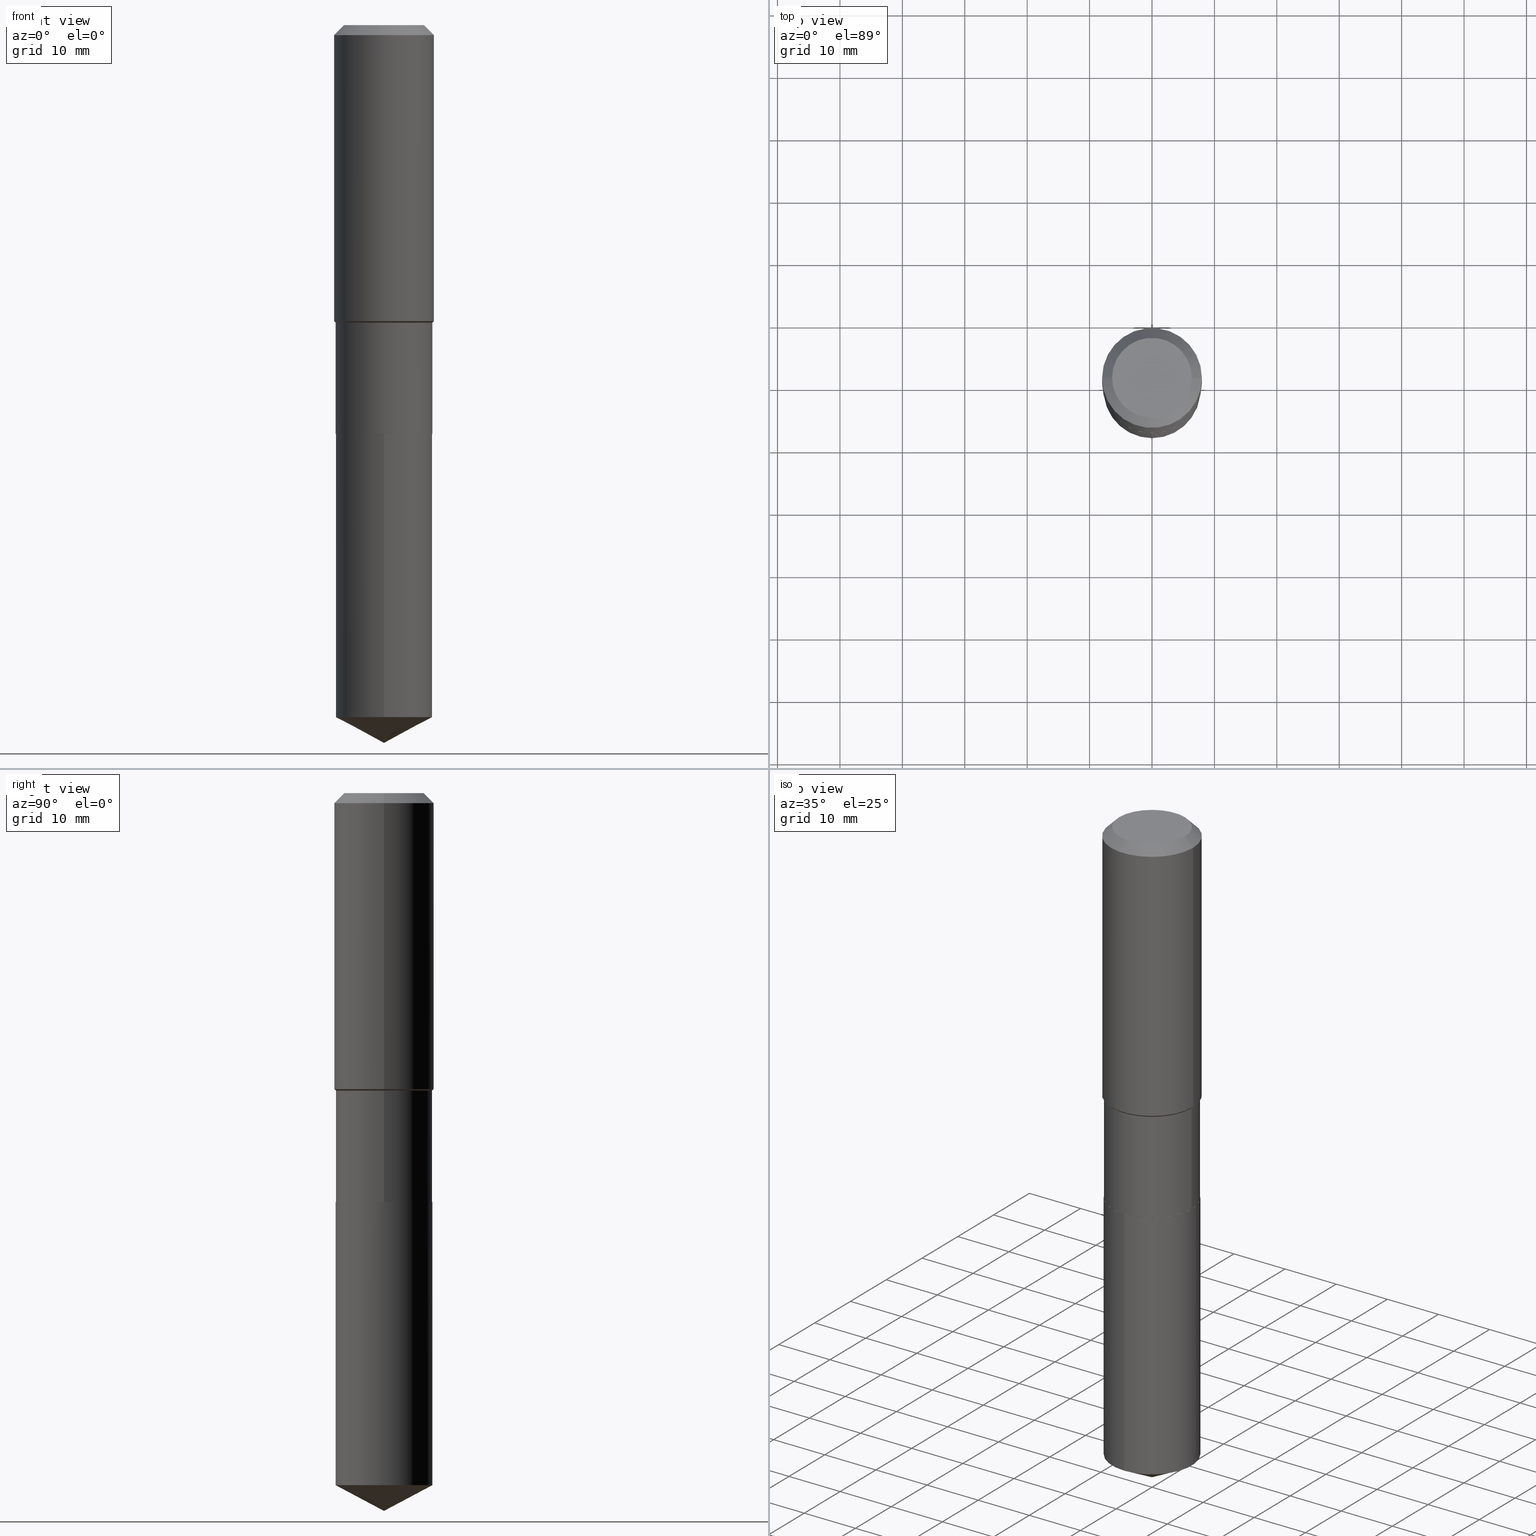
[diagram: canonical four-view strip — front | top / right | iso, engineering-drawing reading convention]
A machine part, canonical four-view strip (front | top / right | iso — engineering-drawing reading convention). The complete STEP part file that produces these views, byte-faithful:
ISO-10303-21;
HEADER;
FILE_DESCRIPTION (( 'STEP AP203' ),
    '1' );
FILE_NAME ('64700.STEP',
    '2024-04-24T18:51:53',
    ( '' ),
    ( '' ),
    'SwSTEP 2.0',
    'SolidWorks 2023',
    '' );
FILE_SCHEMA (( 'CONFIG_CONTROL_DESIGN' ));
ENDSEC;

DATA;
#1 = ADVANCED_FACE ( 'NONE', ( #322 ), #136, .T. ) ;
#2 = VERTEX_POINT ( 'NONE', #220 ) ;
#3 = DIRECTION ( 'NONE',  ( 1.000000000000000000, 0.000000000000000000, 0.000000000000000000 ) ) ;
#4 = VECTOR ( 'NONE', #252, 39.37007874015748143 ) ;
#5 = ORIENTED_EDGE ( 'NONE', *, *, #484, .T. ) ;
#6 = DIRECTION ( 'NONE',  ( -2.445468806185136597E-29, 3.491481338843145583E-15, 1.000000000000000000 ) ) ;
#7 = EDGE_CURVE ( 'NONE', #82, #47, #271, .T. ) ;
#8 = EDGE_LOOP ( 'NONE', ( #294, #188, #329, #417 ) ) ;
#9 = DATE_AND_TIME ( #352, #463 ) ;
#10 = EDGE_CURVE ( 'NONE', #485, #196, #161, .T. ) ;
#11 = EDGE_LOOP ( 'NONE', ( #230, #259, #148, #438 ) ) ;
#12 = ORIENTED_EDGE ( 'NONE', *, *, #330, .F. ) ;
#13 = AXIS2_PLACEMENT_3D ( 'NONE', #422, #457, #303 ) ;
#14 = CONICAL_SURFACE ( 'NONE', #202, 0.3045999999999999819, 0.7853981633972434429 ) ;
#15 = SECURITY_CLASSIFICATION ( '', '', #389 ) ;
#16 = DIRECTION ( 'NONE',  ( -6.982962677686265133E-15, -1.000000000000000000, 3.581577179500836259E-15 ) ) ;
#17 = EDGE_CURVE ( 'NONE', #82, #35, #71, .T. ) ;
#18 = CYLINDRICAL_SURFACE ( 'NONE', #340, 0.3050999999999999268 ) ;
#19 = COORDINATED_UNIVERSAL_TIME_OFFSET ( 5, 0, .BEHIND. ) ;
#20 = VECTOR ( 'NONE', #488, 39.37007874015748143 ) ;
#21 = CIRCLE ( 'NONE', #221, 0.3050999999999999268 ) ;
#22 = DIRECTION ( 'NONE',  ( 1.000000000000000000, -6.982962677686265922E-15, 4.876176775795935232E-29 ) ) ;
#23 = ADVANCED_FACE ( 'NONE', ( #108 ), #299, .T. ) ;
#24 = DATE_TIME_ROLE ( 'classification_date' ) ;
#25 = CARTESIAN_POINT ( 'NONE',  ( 6.304907676106516855E-29, -9.001737187805394412E-15, -2.578199999999999381 ) ) ;
#26 = PRODUCT ( '64700', '64700', '', ( #324 ) ) ;
#27 = CARTESIAN_POINT ( 'NONE',  ( 1.540400801016026329E-30, -2.199284095337310135E-16, -0.06299000000000036514 ) ) ;
#28 = PERSON_AND_ORGANIZATION_ROLE ( 'design_supplier' ) ;
#29 = DIRECTION ( 'NONE',  ( -2.445506732258076167E-29, 3.491427026548078153E-15, 1.000000000000000000 ) ) ;
#30 = CARTESIAN_POINT ( 'NONE',  ( -0.3050999999999999268, 2.167865886804065147E-15, -1.500767096036771338E-29 ) ) ;
#31 = ORIENTED_EDGE ( 'NONE', *, *, #129, .T. ) ;
#32 = EDGE_CURVE ( 'NONE', #106, #141, #478, .T. ) ;
#33 = FACE_OUTER_BOUND ( 'NONE', #407, .T. ) ;
#34 =( GEOMETRIC_REPRESENTATION_CONTEXT ( 3 ) GLOBAL_UNCERTAINTY_ASSIGNED_CONTEXT ( ( #401 ) ) GLOBAL_UNIT_ASSIGNED_CONTEXT ( ( #370, #45, #191 ) ) REPRESENTATION_CONTEXT ( 'NONE', 'WORKASPACE' ) );
#35 = VERTEX_POINT ( 'NONE', #244 ) ;
#36 = CARTESIAN_POINT ( 'NONE',  ( 6.304907676106516855E-29, -9.001737187805394412E-15, -2.578199999999999381 ) ) ;
#37 = DIRECTION ( 'NONE',  ( -6.982962677686266711E-15, -1.000000000000000000, 3.541896320645564813E-15 ) ) ;
#38 = EDGE_LOOP ( 'NONE', ( #185, #435, #338, #152 ) ) ;
#39 = DIRECTION ( 'NONE',  ( -2.445506732258076167E-29, 3.491427026548078153E-15, 1.000000000000000000 ) ) ;
#40 = DIRECTION ( 'NONE',  ( -1.000000000000000000, 6.982962677686266711E-15, 0.000000000000000000 ) ) ;
#41 = APPROVAL_ROLE ( '' ) ;
#42 = AXIS2_PLACEMENT_3D ( 'NONE', #260, #39, #288 ) ;
#43 = ADVANCED_FACE ( 'NONE', ( #394 ), #216, .F. ) ;
#44 = ORIENTED_EDGE ( 'NONE', *, *, #63, .F. ) ;
#45 =( NAMED_UNIT ( * ) PLANE_ANGLE_UNIT ( ) SI_UNIT ( $, .RADIAN. ) );
#46 = DIRECTION ( 'NONE',  ( -2.445506732258076167E-29, 3.491427026548078153E-15, 1.000000000000000000 ) ) ;
#47 = VERTEX_POINT ( 'NONE', #212 ) ;
#48 = ADVANCED_FACE ( 'NONE', ( #280 ), #103, .F. ) ;
#49 = ORIENTED_EDGE ( 'NONE', *, *, #424, .F. ) ;
#50 = MANIFOLD_SOLID_BREP ( 'Body-Move/Copy2[1]', #291 ) ;
#51 = ORIENTED_EDGE ( 'NONE', *, *, #420, .F. ) ;
#52 = LINE ( 'NONE', #268, #487 ) ;
#53 = AXIS2_PLACEMENT_3D ( 'NONE', #208, #477, #138 ) ;
#54 = APPROVAL_PERSON_ORGANIZATION ( #114, #466, #41 ) ;
#55 = ADVANCED_FACE ( 'NONE', ( #360 ), #228, .T. ) ;
#56 = PERSON_AND_ORGANIZATION ( #134, #410 ) ;
#57 = AXIS2_PLACEMENT_3D ( 'NONE', #168, #305, #468 ) ;
#58 = AXIS2_PLACEMENT_3D ( 'NONE', #250, #402, #73 ) ;
#59 = CARTESIAN_POINT ( 'NONE',  ( -2.130501912962016366E-15, -0.3051000000000089751, -2.578699999999998216 ) ) ;
#60 = CARTESIAN_POINT ( 'NONE',  ( 6.306130410509609656E-29, -9.003482928474816704E-15, -2.578699999999999548 ) ) ;
#61 = DIRECTION ( 'NONE',  ( -2.445468806185136597E-29, 3.491481338843145583E-15, 1.000000000000000000 ) ) ;
#62 = CARTESIAN_POINT ( 'NONE',  ( -8.520761412757830605E-28, 1.216498318901973743E-13, 34.84247874015748181 ) ) ;
#63 = EDGE_CURVE ( 'NONE', #2, #35, #441, .T. ) ;
#64 = VERTEX_POINT ( 'NONE', #147 ) ;
#65 = DIRECTION ( 'NONE',  ( 1.000000000000000000, -6.982962677686269866E-15, 0.000000000000000000 ) ) ;
#66 = DIRECTION ( 'NONE',  ( 1.000000000000000000, -6.982962677686269866E-15, 0.000000000000000000 ) ) ;
#67 = ORIENTED_EDGE ( 'NONE', *, *, #330, .T. ) ;
#68 = CC_DESIGN_PERSON_AND_ORGANIZATION_ASSIGNMENT ( #308, #97, ( #98 ) ) ;
#69 = CYLINDRICAL_SURFACE ( 'NONE', #368, 0.3149500000000001743 ) ;
#70 = AXIS2_PLACEMENT_3D ( 'NONE', #25, #480, #140 ) ;
#71 = LINE ( 'NONE', #209, #227 ) ;
#72 = ORIENTED_EDGE ( 'NONE', *, *, #32, .T. ) ;
#73 = DIRECTION ( 'NONE',  ( 1.000000000000000000, -6.982962677686266711E-15, 0.000000000000000000 ) ) ;
#74 = DIRECTION ( 'NONE',  ( -2.445506732258076167E-29, 3.491427026548078153E-15, 1.000000000000000000 ) ) ;
#75 = DIRECTION ( 'NONE',  ( -2.445506732258076167E-29, 3.491427026548078153E-15, 1.000000000000000000 ) ) ;
#76 = EDGE_CURVE ( 'NONE', #289, #298, #428, .T. ) ;
#77 = ORIENTED_EDGE ( 'NONE', *, *, #132, .F. ) ;
#78 =( LENGTH_UNIT ( ) NAMED_UNIT ( * ) SI_UNIT ( $, .METRE. ) );
#79 = AXIS2_PLACEMENT_3D ( 'NONE', #60, #205, #351 ) ;
#80 = AXIS2_PLACEMENT_3D ( 'NONE', #359, #439, #393 ) ;
#81 = ADVANCED_FACE ( 'NONE', ( #392 ), #346, .T. ) ;
#82 = VERTEX_POINT ( 'NONE', #201 ) ;
#83 = DIRECTION ( 'NONE',  ( -6.982962677686265133E-15, -1.000000000000000000, 3.581577179500837048E-15 ) ) ;
#84 = ORIENTED_EDGE ( 'NONE', *, *, #17, .F. ) ;
#85 = ORIENTED_EDGE ( 'NONE', *, *, #113, .T. ) ;
#86 = EDGE_CURVE ( 'NONE', #289, #64, #52, .T. ) ;
#87 = LENGTH_MEASURE_WITH_UNIT ( LENGTH_MEASURE( 0.02539999999999999897 ), #78 );
#88 = CONICAL_SURFACE ( 'NONE', #80, 0.3050999999999999268, 0.7853981633974552734 ) ;
#89 = ORIENTED_EDGE ( 'NONE', *, *, #270, .F. ) ;
#90 = CARTESIAN_POINT ( 'NONE',  ( -0.3050999999999999268, -5.609757943602924419E-15, -1.876999999999999780 ) ) ;
#91 = APPROVAL_ROLE ( '' ) ;
#92 = LINE ( 'NONE', #166, #163 ) ;
#93 = EDGE_CURVE ( 'NONE', #47, #82, #118, .T. ) ;
#94 = DIRECTION ( 'NONE',  ( -2.445468806185136597E-29, 3.491481338843145583E-15, 1.000000000000000000 ) ) ;
#95 = CC_DESIGN_APPROVAL ( #276, ( #119 ) ) ;
#96 = DIRECTION ( 'NONE',  ( 0.7071067811865524577, -2.468850131082308731E-15, 0.7071067811865425767 ) ) ;
#97 = PERSON_AND_ORGANIZATION_ROLE ( 'creator' ) ;
#98 = PRODUCT_DEFINITION ( 'UNKNOWN', '', #119, #447 ) ;
#99 = CARTESIAN_POINT ( 'NONE',  ( -0.3149500000000000077, -1.131669549400917718E-15, -0.06299000000000036514 ) ) ;
#100 = CARTESIAN_POINT ( 'NONE',  ( 1.107227799615215096E-28, -1.580778500539907344E-14, -4.527599999999999625 ) ) ;
#101 = AXIS2_PLACEMENT_3D ( 'NONE', #36, #399, #172 ) ;
#102 = LINE ( 'NONE', #434, #266 ) ;
#103 = PLANE ( 'NONE',  #169 ) ;
#104 = CARTESIAN_POINT ( 'NONE',  ( 1.067545725771425880E-28, -1.524152989065448378E-14, -4.365375452400082956 ) ) ;
#105 = ADVANCED_FACE ( 'NONE', ( #162 ), #18, .T. ) ;
#106 = VERTEX_POINT ( 'NONE', #300 ) ;
#107 = CARTESIAN_POINT ( 'NONE',  ( 2.167865886804172038E-15, 0.3050999999999847723, -4.365375452400083844 ) ) ;
#108 = FACE_OUTER_BOUND ( 'NONE', #398, .T. ) ;
#109 = AXIS2_PLACEMENT_3D ( 'NONE', #27, #354, #40 ) ;
#110 = PLANE ( 'NONE',  #53 ) ;
#111 = AXIS2_PLACEMENT_3D ( 'NONE', #204, #246, #284 ) ;
#112 = CARTESIAN_POINT ( 'NONE',  ( -9.427742298522569579E-47, 1.346031739168368629E-32, 3.855188123715871501E-18 ) ) ;
#113 = EDGE_CURVE ( 'NONE', #371, #2, #464, .T. ) ;
#114 = PERSON_AND_ORGANIZATION ( #134, #410 ) ;
#115 = CARTESIAN_POINT ( 'NONE',  ( 2.167865886804128256E-15, 0.3050999999999909895, -2.578700000000000436 ) ) ;
#116 = PRODUCT_RELATED_PRODUCT_CATEGORY ( 'detail', '', ( #26 ) ) ;
#117 = ORIENTED_EDGE ( 'NONE', *, *, #476, .T. ) ;
#118 = CIRCLE ( 'NONE', #57, 0.2519600000000000173 ) ;
#119 = PRODUCT_DEFINITION_FORMATION_WITH_SPECIFIED_SOURCE ( 'ANY', '', #26, .NOT_KNOWN. ) ;
#120 = EDGE_LOOP ( 'NONE', ( #245, #248 ) ) ;
#121 = ORIENTED_EDGE ( 'NONE', *, *, #10, .F. ) ;
#122 = LINE ( 'NONE', #115, #258 ) ;
#123 = ORIENTED_EDGE ( 'NONE', *, *, #344, .F. ) ;
#124 = DATE_AND_TIME ( #462, #229 ) ;
#125 = DIRECTION ( 'NONE',  ( -2.445468806185136877E-29, 3.491481338843145188E-15, 1.000000000000000000 ) ) ;
#126 = AXIS2_PLACEMENT_3D ( 'NONE', #387, #342, #16 ) ;
#127 = ORIENTED_EDGE ( 'NONE', *, *, #461, .F. ) ;
#128 = LINE ( 'NONE', #159, #459 ) ;
#129 = EDGE_CURVE ( 'NONE', #64, #298, #137, .T. ) ;
#130 = CIRCLE ( 'NONE', #357, 0.3050999999999999823 ) ;
#131 = DIRECTION ( 'NONE',  ( 1.000000000000000000, -6.982962677686265133E-15, 4.876176775795935793E-29 ) ) ;
#132 = EDGE_CURVE ( 'NONE', #141, #328, #128, .T. ) ;
#133 = DIRECTION ( 'NONE',  ( -2.445468806185136597E-29, 3.491481338843145583E-15, 1.000000000000000000 ) ) ;
#134 = PERSON ( 'UNSPECIFIED', 'UNSPECIFIED', 'UNSPECIFIED', ('UNSPECIFIED'), ('UNSPECIFIED'), ('UNSPECIFIED') ) ;
#135 = CARTESIAN_POINT ( 'NONE',  ( 6.306130410509609656E-29, -9.003482928474816704E-15, -2.578699999999999548 ) ) ;
#136 = CYLINDRICAL_SURFACE ( 'NONE', #416, 0.3050999999999999268 ) ;
#137 = CIRCLE ( 'NONE', #126, 0.3051000000000000378 ) ;
#138 = DIRECTION ( 'NONE',  ( 6.982962677686265922E-15, 1.000000000000000000, -3.491427026548078153E-15 ) ) ;
#139 = ADVANCED_FACE ( 'NONE', ( #296 ), #423, .T. ) ;
#140 = DIRECTION ( 'NONE',  ( 1.000000000000000000, -6.982962677686264344E-15, 0.000000000000000000 ) ) ;
#141 = VERTEX_POINT ( 'NONE', #90 ) ;
#142 = DIRECTION ( 'NONE',  ( 1.000000000000000000, -6.982962677686266711E-15, 0.000000000000000000 ) ) ;
#143 = DIRECTION ( 'NONE',  ( 1.000000000000000000, -6.982962677686266711E-15, 4.876115136096691995E-29 ) ) ;
#144 = ORIENTED_EDGE ( 'NONE', *, *, #86, .T. ) ;
#145 = DIMENSIONAL_EXPONENTS ( 1.000000000000000000, 0.000000000000000000, 0.000000000000000000, 0.000000000000000000, 0.000000000000000000, 0.000000000000000000, 0.000000000000000000 ) ;
#146 = PERSON_AND_ORGANIZATION_ROLE ( 'design_owner' ) ;
#147 = CARTESIAN_POINT ( 'NONE',  ( -2.130501912961973373E-15, -0.3051000000000153034, -4.365375452400082068 ) ) ;
#148 = ORIENTED_EDGE ( 'NONE', *, *, #326, .T. ) ;
#149 = CARTESIAN_POINT ( 'NONE',  ( -0.3045999999999999819, -6.839169755349552456E-15, -2.578699999999999548 ) ) ;
#150 = ORIENTED_EDGE ( 'NONE', *, *, #93, .F. ) ;
#151 = LINE ( 'NONE', #149, #4 ) ;
#152 = ORIENTED_EDGE ( 'NONE', *, *, #380, .F. ) ;
#153 = CARTESIAN_POINT ( 'NONE',  ( 0.3050999999999999268, -2.130501912962079080E-15, 1.487721534295339594E-29 ) ) ;
#154 = AXIS2_PLACEMENT_3D ( 'NONE', #282, #274, #317 ) ;
#155 = ORIENTED_EDGE ( 'NONE', *, *, #86, .F. ) ;
#156 = LINE ( 'NONE', #153, #400 ) ;
#157 = ORIENTED_EDGE ( 'NONE', *, *, #307, .T. ) ;
#158 = ADVANCED_BREP_SHAPE_REPRESENTATION ( '64700', ( #50, #365, #460 ), #34 ) ;
#159 = CARTESIAN_POINT ( 'NONE',  ( -0.3050999999999999268, -4.385644586204518785E-15, -1.876999999999999780 ) ) ;
#160 = EDGE_LOOP ( 'NONE', ( #213, #144, #409 ) ) ;
#161 = CIRCLE ( 'NONE', #297, 0.3045999999999999819 ) ;
#162 = FACE_OUTER_BOUND ( 'NONE', #261, .T. ) ;
#163 = VECTOR ( 'NONE', #125, 39.37007874015748143 ) ;
#164 = AXIS2_PLACEMENT_3D ( 'NONE', #469, #133, #350 ) ;
#165 = ORIENTED_EDGE ( 'NONE', *, *, #420, .T. ) ;
#166 = CARTESIAN_POINT ( 'NONE',  ( -0.3149500000000001743, 2.237854346276436774E-15, -1.549218606675783237E-29 ) ) ;
#167 = DIRECTION ( 'NONE',  ( -0.7071067811865524577, 7.493145998870371515E-15, 0.7071067811865425767 ) ) ;
#168 = CARTESIAN_POINT ( 'NONE',  ( -9.427742298522569579E-47, 1.346031739168368629E-32, 3.855188123715871501E-18 ) ) ;
#169 = AXIS2_PLACEMENT_3D ( 'NONE', #183, #186, #356 ) ;
#170 = CONICAL_SURFACE ( 'NONE', #164, 0.3050999999999999268, 0.7853981633974552734 ) ;
#171 = CALENDAR_DATE ( 2024, 24, 4 ) ;
#172 = DIRECTION ( 'NONE',  ( 1.000000000000000000, -6.982962677686264344E-15, 0.000000000000000000 ) ) ;
#173 = PERSON_AND_ORGANIZATION ( #134, #410 ) ;
#174 = CARTESIAN_POINT ( 'NONE',  ( 2.167865886804172432E-15, 0.3050999999999909895, -2.578700000000000436 ) ) ;
#175 = APPROVAL_DATE_TIME ( #9, #197 ) ;
#176 = DIRECTION ( 'NONE',  ( -2.445506732258076167E-29, 3.491427026548078153E-15, 1.000000000000000000 ) ) ;
#177 = CARTESIAN_POINT ( 'NONE',  ( -4.713871149261284790E-47, 6.730158695841843144E-33, 1.927594061857935750E-18 ) ) ;
#178 = ORIENTED_EDGE ( 'NONE', *, *, #184, .T. ) ;
#179 = CIRCLE ( 'NONE', #58, 0.3050999999999999268 ) ;
#180 = DIRECTION ( 'NONE',  ( -2.445468806185136597E-29, 3.491481338843145583E-15, 1.000000000000000000 ) ) ;
#181 = ORIENTED_EDGE ( 'NONE', *, *, #7, .F. ) ;
#182 = FACE_OUTER_BOUND ( 'NONE', #414, .T. ) ;
#183 = CARTESIAN_POINT ( 'NONE',  ( 6.306130410509609656E-29, -9.003482928474816704E-15, -2.578699999999999548 ) ) ;
#184 = EDGE_CURVE ( 'NONE', #328, #336, #92, .T. ) ;
#185 = ORIENTED_EDGE ( 'NONE', *, *, #431, .F. ) ;
#186 = DIRECTION ( 'NONE',  ( -2.438088387897960049E-29, 3.491481338843145188E-15, 1.000000000000000000 ) ) ;
#187 = CC_DESIGN_PERSON_AND_ORGANIZATION_ASSIGNMENT ( #486, #146, ( #26 ) ) ;
#188 = ORIENTED_EDGE ( 'NONE', *, *, #431, .T. ) ;
#189 = VECTOR ( 'NONE', #408, 39.37007874015748143 ) ;
#190 = EDGE_LOOP ( 'NONE', ( #255, #363, #283, #12 ) ) ;
#191 =( NAMED_UNIT ( * ) SI_UNIT ( $, .STERADIAN. ) SOLID_ANGLE_UNIT ( ) );
#192 = DIRECTION ( 'NONE',  ( 1.000000000000000000, -6.982962677686266711E-15, 0.000000000000000000 ) ) ;
#193 = ORIENTED_EDGE ( 'NONE', *, *, #262, .T. ) ;
#194 = APPROVAL_DATE_TIME ( #456, #276 ) ;
#195 = ADVANCED_FACE ( 'NONE', ( #269 ), #465, .T. ) ;
#196 = VERTEX_POINT ( 'NONE', #382 ) ;
#197 = APPROVAL ( #429, 'UNSPECIFIED' ) ;
#198 = PERSON_AND_ORGANIZATION ( #134, #410 ) ;
#199 = DIRECTION ( 'NONE',  ( -2.445468806185136597E-29, 3.491481338843145583E-15, 1.000000000000000000 ) ) ;
#200 = CIRCLE ( 'NONE', #432, 0.3045999999999999819 ) ;
#201 = CARTESIAN_POINT ( 'NONE',  ( 0.2519600000000000173, -2.054606664725195058E-15, 3.855188123729206640E-18 ) ) ;
#202 = AXIS2_PLACEMENT_3D ( 'NONE', #218, #430, #65 ) ;
#203 = DATE_AND_TIME ( #171, #278 ) ;
#204 = CARTESIAN_POINT ( 'NONE',  ( 1.540400801016026329E-30, -2.199284095337310135E-16, -0.06299000000000036514 ) ) ;
#205 = DIRECTION ( 'NONE',  ( -2.445468806185136597E-29, 3.491481338843145583E-15, 1.000000000000000000 ) ) ;
#206 = EDGE_CURVE ( 'NONE', #328, #2, #384, .T. ) ;
#207 = COORDINATED_UNIVERSAL_TIME_OFFSET ( 5, 0, .BEHIND. ) ;
#208 = CARTESIAN_POINT ( 'NONE',  ( 6.306130410509609656E-29, -9.003482928474816704E-15, -2.578699999999999548 ) ) ;
#209 = CARTESIAN_POINT ( 'NONE',  ( 0.3149500000000000077, -2.380642253931875190E-15, -0.06299000000000036514 ) ) ;
#210 = EDGE_LOOP ( 'NONE', ( #165, #157 ) ) ;
#211 = FACE_OUTER_BOUND ( 'NONE', #451, .T. ) ;
#212 = CARTESIAN_POINT ( 'NONE',  ( -0.2519600000000000173, 1.869391481036695286E-15, 3.855188123703182704E-18 ) ) ;
#213 = ORIENTED_EDGE ( 'NONE', *, *, #76, .F. ) ;
#214 = CIRCLE ( 'NONE', #240, 0.3149500000000000077 ) ;
#215 = DIRECTION ( 'NONE',  ( -6.982962677686265133E-15, -1.000000000000000000, 3.581577179500837048E-15 ) ) ;
#216 = PLANE ( 'NONE',  #375 ) ;
#217 = ORIENTED_EDGE ( 'NONE', *, *, #461, .T. ) ;
#218 = CARTESIAN_POINT ( 'NONE',  ( 6.306130410509609656E-29, -9.003482928474816704E-15, -2.578699999999999548 ) ) ;
#219 = ADVANCED_FACE ( 'NONE', ( #182 ), #331, .T. ) ;
#220 = CARTESIAN_POINT ( 'NONE',  ( 0.3149500000000002298, -8.718403477158269000E-15, -1.867149999999999421 ) ) ;
#221 = AXIS2_PLACEMENT_3D ( 'NONE', #446, #490, #286 ) ;
#222 = ADVANCED_FACE ( 'NONE', ( #33 ), #234, .T. ) ;
#223 = ORIENTED_EDGE ( 'NONE', *, *, #113, .F. ) ;
#224 = DIRECTION ( 'NONE',  ( -2.445468806185136597E-29, 3.491481338843145583E-15, 1.000000000000000000 ) ) ;
#225 = CARTESIAN_POINT ( 'NONE',  ( -0.3149500000000000077, 1.979355685803558833E-15, -0.06299000000000036514 ) ) ;
#226 = ORIENTED_EDGE ( 'NONE', *, *, #476, .F. ) ;
#227 = VECTOR ( 'NONE', #285, 39.37007874015748143 ) ;
#228 = CONICAL_SURFACE ( 'NONE', #440, 74.04434902938345431, 1.082104136236486047 ) ;
#229 = LOCAL_TIME ( 14, 51, 53.00000000000000000, #312 ) ;
#230 = ORIENTED_EDGE ( 'NONE', *, *, #471, .F. ) ;
#231 = DIRECTION ( 'NONE',  ( -2.445468806185136597E-29, 3.491481338843145583E-15, 1.000000000000000000 ) ) ;
#232 = VERTEX_POINT ( 'NONE', #59 ) ;
#233 = CARTESIAN_POINT ( 'NONE',  ( 0.000000000000000000, 0.000000000000000000, 0.000000000000000000 ) ) ;
#234 = CONICAL_SURFACE ( 'NONE', #154, 74.04434902938345431, 1.082104136236486047 ) ;
#235 = CC_DESIGN_PERSON_AND_ORGANIZATION_ASSIGNMENT ( #56, #265, ( #15 ) ) ;
#236 = PRODUCT_DEFINITION_SHAPE ( 'NONE', 'NONE',  #98 ) ;
#237 = PERSON_AND_ORGANIZATION_ROLE ( 'creator' ) ;
#238 = FACE_OUTER_BOUND ( 'NONE', #38, .T. ) ;
#239 = DIRECTION ( 'NONE',  ( 6.273719981627762921E-15, 0.8829475928589293199, 0.4694715627858860874 ) ) ;
#240 = AXIS2_PLACEMENT_3D ( 'NONE', #313, #321, #142 ) ;
#241 = APPROVAL_ROLE ( '' ) ;
#242 = DIRECTION ( 'NONE',  ( -6.982962677686265133E-15, -1.000000000000000000, 3.581577179500836259E-15 ) ) ;
#243 = DIRECTION ( 'NONE',  ( -2.445506732258076167E-29, 3.491427026548078153E-15, 1.000000000000000000 ) ) ;
#244 = CARTESIAN_POINT ( 'NONE',  ( 0.3149500000000000077, -2.419212504871020909E-15, -0.06299000000000036514 ) ) ;
#245 = ORIENTED_EDGE ( 'NONE', *, *, #93, .T. ) ;
#246 = DIRECTION ( 'NONE',  ( 2.445468806185136597E-29, -3.491481338843145583E-15, -1.000000000000000000 ) ) ;
#247 = DIRECTION ( 'NONE',  ( -2.445468806185136877E-29, 3.491481338843145188E-15, 1.000000000000000000 ) ) ;
#248 = ORIENTED_EDGE ( 'NONE', *, *, #7, .T. ) ;
#249 = AXIS2_PLACEMENT_3D ( 'NONE', #290, #224, #192 ) ;
#250 = CARTESIAN_POINT ( 'NONE',  ( 4.590144949209500643E-29, -6.553510473008583144E-15, -1.876999999999999780 ) ) ;
#251 = DIRECTION ( 'NONE',  ( -2.445468806185136597E-29, 3.491481338843145583E-15, 1.000000000000000000 ) ) ;
#252 = DIRECTION ( 'NONE',  ( -0.7071067811864026886, 7.493145998869830357E-15, 0.7071067811866923458 ) ) ;
#253 = EDGE_LOOP ( 'NONE', ( #77, #287, #85, #361 ) ) ;
#254 = CARTESIAN_POINT ( 'NONE',  ( -0.3045999999999999819, -6.836520528175441255E-15, -2.578699999999999548 ) ) ;
#255 = ORIENTED_EDGE ( 'NONE', *, *, #184, .F. ) ;
#256 = AXIS2_PLACEMENT_3D ( 'NONE', #267, #231, #378 ) ;
#257 = DIRECTION ( 'NONE',  ( 0.000000000000000000, 0.000000000000000000, 1.000000000000000000 ) ) ;
#258 = VECTOR ( 'NONE', #75, 39.37007874015748143 ) ;
#259 = ORIENTED_EDGE ( 'NONE', *, *, #348, .T. ) ;
#260 = CARTESIAN_POINT ( 'NONE',  ( 6.306130410509609656E-29, -9.003482928474816704E-15, -2.578699999999999548 ) ) ;
#261 = EDGE_LOOP ( 'NONE', ( #445, #482, #217, #49 ) ) ;
#262 = EDGE_CURVE ( 'NONE', #377, #106, #306, .T. ) ;
#263 = DIRECTION ( 'NONE',  ( 1.000000000000000000, -6.982962677686268288E-15, 0.000000000000000000 ) ) ;
#264 = ORIENTED_EDGE ( 'NONE', *, *, #455, .T. ) ;
#265 = PERSON_AND_ORGANIZATION_ROLE ( 'classification_officer' ) ;
#266 = VECTOR ( 'NONE', #29, 39.37007874015748143 ) ;
#267 = CARTESIAN_POINT ( 'NONE',  ( 4.566057081468576714E-29, -6.519119381820977551E-15, -1.867149999999999421 ) ) ;
#268 = CARTESIAN_POINT ( 'NONE',  ( 1.107208068104308501E-28, -1.580806511562965912E-14, -4.527599999999999625 ) ) ;
#269 = FACE_OUTER_BOUND ( 'NONE', #458, .T. ) ;
#270 = EDGE_CURVE ( 'NONE', #196, #485, #200, .T. ) ;
#271 = CIRCLE ( 'NONE', #388, 0.2519600000000000173 ) ;
#272 = CARTESIAN_POINT ( 'NONE',  ( 0.000000000000000000, 0.000000000000000000, 0.000000000000000000 ) ) ;
#273 = DIRECTION ( 'NONE',  ( -6.165590087286832085E-15, -0.8829475928589261002, 0.4694715627858923601 ) ) ;
#274 = DIRECTION ( 'NONE',  ( -2.445506732258076167E-29, 3.491427026548078153E-15, 1.000000000000000000 ) ) ;
#275 = DATE_AND_TIME ( #421, #315 ) ;
#276 = APPROVAL ( #419, 'UNSPECIFIED' ) ;
#277 = CARTESIAN_POINT ( 'NONE',  ( -0.3149500000000002298, -4.281265035544540777E-15, -1.867149999999999421 ) ) ;
#278 = LOCAL_TIME ( 14, 51, 53.00000000000000000, #19 ) ;
#279 = CARTESIAN_POINT ( 'NONE',  ( 1.107227628097166441E-28, -1.580778500539907660E-14, -4.527599999999999625 ) ) ;
#280 = FACE_OUTER_BOUND ( 'NONE', #448, .T. ) ;
#281 = ADVANCED_FACE ( 'NONE', ( #436 ), #69, .T. ) ;
#282 = CARTESIAN_POINT ( 'NONE',  ( -8.520761412757830605E-28, 1.216498318901973743E-13, 34.84247874015748181 ) ) ;
#283 = ORIENTED_EDGE ( 'NONE', *, *, #63, .T. ) ;
#284 = DIRECTION ( 'NONE',  ( -1.000000000000000000, 6.982962677686266711E-15, 0.000000000000000000 ) ) ;
#285 = DIRECTION ( 'NONE',  ( 0.7071067811865453523, -7.319954787623248157E-15, -0.7071067811865496822 ) ) ;
#286 = DIRECTION ( 'NONE',  ( 1.000000000000000000, -6.982962677686266711E-15, 0.000000000000000000 ) ) ;
#287 = ORIENTED_EDGE ( 'NONE', *, *, #424, .T. ) ;
#288 = DIRECTION ( 'NONE',  ( -6.982962677686265133E-15, -1.000000000000000000, 3.581577179500837048E-15 ) ) ;
#289 = VERTEX_POINT ( 'NONE', #279 ) ;
#290 = CARTESIAN_POINT ( 'NONE',  ( 1.540400801016026329E-30, -2.199284095337310135E-16, -0.06299000000000036514 ) ) ;
#291 = CLOSED_SHELL ( 'NONE', ( #443, #222, #55, #139, #339 ) ) ;
#292 = ORIENTED_EDGE ( 'NONE', *, *, #484, .F. ) ;
#293 = LOCAL_TIME ( 14, 51, 53.00000000000000000, #295 ) ;
#294 = ORIENTED_EDGE ( 'NONE', *, *, #270, .T. ) ;
#295 = COORDINATED_UNIVERSAL_TIME_OFFSET ( 5, 0, .BEHIND. ) ;
#296 = FACE_OUTER_BOUND ( 'NONE', #11, .T. ) ;
#297 = AXIS2_PLACEMENT_3D ( 'NONE', #403, #433, #66 ) ;
#298 = VERTEX_POINT ( 'NONE', #107 ) ;
#299 = CONICAL_SURFACE ( 'NONE', #109, 0.3149500000000000077, 0.7853981633974452814 ) ;
#300 = CARTESIAN_POINT ( 'NONE',  ( -0.3050999999999999823, -5.609757943602922842E-15, -2.578199999999999381 ) ) ;
#301 = CC_DESIGN_SECURITY_CLASSIFICATION ( #15, ( #119 ) ) ;
#302 = DIRECTION ( 'NONE',  ( 1.000000000000000000, -6.982962677686265922E-15, 4.876176775795935232E-29 ) ) ;
#303 = DIRECTION ( 'NONE',  ( -6.982962677686265133E-15, -1.000000000000000000, 3.581577179500837048E-15 ) ) ;
#304 = VECTOR ( 'NONE', #247, 39.37007874015748143 ) ;
#305 = DIRECTION ( 'NONE',  ( -2.445468806185136597E-29, 3.491481338843145583E-15, 1.000000000000000000 ) ) ;
#306 = CIRCLE ( 'NONE', #101, 0.3050999999999999268 ) ;
#307 = EDGE_CURVE ( 'NONE', #395, #232, #130, .T. ) ;
#308 = PERSON_AND_ORGANIZATION ( #134, #410 ) ;
#309 = CARTESIAN_POINT ( 'NONE',  ( 0.3050999999999999268, -8.684012385970661829E-15, -1.876999999999999780 ) ) ;
#310 = COORDINATED_UNIVERSAL_TIME_OFFSET ( 5, 0, .BEHIND. ) ;
#311 = LINE ( 'NONE', #472, #450 ) ;
#312 = COORDINATED_UNIVERSAL_TIME_OFFSET ( 5, 0, .BEHIND. ) ;
#313 = CARTESIAN_POINT ( 'NONE',  ( 1.540400801016026329E-30, -2.199284095337310135E-16, -0.06299000000000036514 ) ) ;
#314 = AXIS2_PLACEMENT_3D ( 'NONE', #233, #94, #302 ) ;
#315 = LOCAL_TIME ( 14, 51, 53.00000000000000000, #310 ) ;
#316 = CC_DESIGN_APPROVAL ( #466, ( #98 ) ) ;
#317 = DIRECTION ( 'NONE',  ( -6.982962677686266711E-15, -1.000000000000000000, 3.541896320645564813E-15 ) ) ;
#318 = ADVANCED_FACE ( 'NONE', ( #427 ), #88, .T. ) ;
#319 = CARTESIAN_POINT ( 'NONE',  ( 0.000000000000000000, 0.000000000000000000, 0.000000000000000000 ) ) ;
#320 = ORIENTED_EDGE ( 'NONE', *, *, #76, .T. ) ;
#321 = DIRECTION ( 'NONE',  ( -2.445468806185136597E-29, 3.491481338843145583E-15, 1.000000000000000000 ) ) ;
#322 = FACE_OUTER_BOUND ( 'NONE', #479, .T. ) ;
#323 = ORIENTED_EDGE ( 'NONE', *, *, #132, .T. ) ;
#324 = MECHANICAL_CONTEXT ( 'NONE', #379, 'mechanical' ) ;
#325 = CARTESIAN_POINT ( 'NONE',  ( 0.3149500000000001743, -2.199284095337290660E-15, 1.535751875536930690E-29 ) ) ;
#326 = EDGE_CURVE ( 'NONE', #64, #232, #102, .T. ) ;
#327 = CARTESIAN_POINT ( 'NONE',  ( 4.566057081468576714E-29, -6.519119381820977551E-15, -1.867149999999999421 ) ) ;
#328 = VERTEX_POINT ( 'NONE', #277 ) ;
#329 = ORIENTED_EDGE ( 'NONE', *, *, #262, .F. ) ;
#330 = EDGE_CURVE ( 'NONE', #336, #35, #214, .T. ) ;
#331 = CONICAL_SURFACE ( 'NONE', #111, 0.3149500000000000077, 0.7853981633974452814 ) ;
#332 = FACE_OUTER_BOUND ( 'NONE', #473, .T. ) ;
#333 = CC_DESIGN_APPROVAL ( #197, ( #15 ) ) ;
#334 = CC_DESIGN_PERSON_AND_ORGANIZATION_ASSIGNMENT ( #345, #28, ( #119 ) ) ;
#335 = ORIENTED_EDGE ( 'NONE', *, *, #17, .T. ) ;
#336 = VERTEX_POINT ( 'NONE', #99 ) ;
#337 = CLOSED_SHELL ( 'NONE', ( #81, #23, #195, #372, #1, #105, #318, #281, #219, #43, #48, #369 ) ) ;
#338 = ORIENTED_EDGE ( 'NONE', *, *, #412, .T. ) ;
#339 = ADVANCED_FACE ( 'NONE', ( #483 ), #110, .F. ) ;
#340 = AXIS2_PLACEMENT_3D ( 'NONE', #272, #199, #131 ) ;
#341 = CIRCLE ( 'NONE', #249, 0.3149500000000000077 ) ;
#342 = DIRECTION ( 'NONE',  ( -2.445506732258076167E-29, 3.491427026548078153E-15, 1.000000000000000000 ) ) ;
#343 = APPROVAL_PERSON_ORGANIZATION ( #173, #197, #241 ) ;
#344 = EDGE_CURVE ( 'NONE', #371, #141, #179, .T. ) ;
#345 = PERSON_AND_ORGANIZATION ( #134, #410 ) ;
#346 = CONICAL_SURFACE ( 'NONE', #79, 0.3045999999999999819, 0.7853981633972434429 ) ;
#347 = CIRCLE ( 'NONE', #467, 0.3050999999999999823 ) ;
#348 = EDGE_CURVE ( 'NONE', #298, #64, #425, .T. ) ;
#349 = DATE_TIME_ROLE ( 'creation_date' ) ;
#350 = DIRECTION ( 'NONE',  ( 1.000000000000000000, -6.982962677686266711E-15, 0.000000000000000000 ) ) ;
#351 = DIRECTION ( 'NONE',  ( 1.000000000000000000, -6.982962677686269866E-15, 0.000000000000000000 ) ) ;
#352 = CALENDAR_DATE ( 2024, 24, 4 ) ;
#353 = CARTESIAN_POINT ( 'NONE',  ( 0.000000000000000000, 0.000000000000000000, 0.000000000000000000 ) ) ;
#354 = DIRECTION ( 'NONE',  ( 2.445468806185136597E-29, -3.491481338843145583E-15, -1.000000000000000000 ) ) ;
#355 = DIRECTION ( 'NONE',  ( 1.000000000000000000, -6.982962677686269866E-15, 0.000000000000000000 ) ) ;
#356 = DIRECTION ( 'NONE',  ( 1.000000000000000000, -6.982962677686265922E-15, 4.876176775795935793E-29 ) ) ;
#357 = AXIS2_PLACEMENT_3D ( 'NONE', #396, #176, #215 ) ;
#358 = ORIENTED_EDGE ( 'NONE', *, *, #471, .T. ) ;
#359 = CARTESIAN_POINT ( 'NONE',  ( 4.590144949209500643E-29, -6.553510473008583144E-15, -1.876999999999999780 ) ) ;
#360 = FACE_OUTER_BOUND ( 'NONE', #160, .T. ) ;
#361 = ORIENTED_EDGE ( 'NONE', *, *, #206, .F. ) ;
#362 = DIRECTION ( 'NONE',  ( -1.000000000000000000, 6.982962677686265922E-15, -4.876176775795935793E-29 ) ) ;
#363 = ORIENTED_EDGE ( 'NONE', *, *, #206, .T. ) ;
#364 = APPROVAL_STATUS ( 'not_yet_approved' ) ;
#365 = MANIFOLD_SOLID_BREP ( 'Body-Move/Copy2[2]', #337 ) ;
#366 = CC_DESIGN_DATE_AND_TIME_ASSIGNMENT ( #275, #349, ( #98 ) ) ;
#367 = ORIENTED_EDGE ( 'NONE', *, *, #129, .F. ) ;
#368 = AXIS2_PLACEMENT_3D ( 'NONE', #353, #180, #22 ) ;
#369 = ADVANCED_FACE ( 'NONE', ( #238 ), #14, .T. ) ;
#370 =( CONVERSION_BASED_UNIT ( 'INCH', #87 ) LENGTH_UNIT ( ) NAMED_UNIT ( #145 ) );
#371 = VERTEX_POINT ( 'NONE', #309 ) ;
#372 = ADVANCED_FACE ( 'NONE', ( #211 ), #170, .T. ) ;
#373 = CYLINDRICAL_SURFACE ( 'NONE', #42, 0.3050999999999999823 ) ;
#374 = ORIENTED_EDGE ( 'NONE', *, *, #344, .T. ) ;
#375 = AXIS2_PLACEMENT_3D ( 'NONE', #177, #397, #362 ) ;
#376 = AXIS2_PLACEMENT_3D ( 'NONE', #104, #243, #242 ) ;
#377 = VERTEX_POINT ( 'NONE', #390 ) ;
#378 = DIRECTION ( 'NONE',  ( 1.000000000000000000, -6.982962677686268288E-15, 0.000000000000000000 ) ) ;
#379 = APPLICATION_CONTEXT ( 'configuration controlled 3d designs of mechanical parts and assemblies' ) ;
#380 = EDGE_CURVE ( 'NONE', #106, #377, #489, .T. ) ;
#381 = APPROVAL_DATE_TIME ( #124, #466 ) ;
#382 = CARTESIAN_POINT ( 'NONE',  ( 0.3045999999999999819, -1.113049336009805554E-14, -2.578699999999999548 ) ) ;
#383 = CC_DESIGN_DATE_AND_TIME_ASSIGNMENT ( #203, #24, ( #15 ) ) ;
#384 = CIRCLE ( 'NONE', #256, 0.3149500000000002298 ) ;
#385 = APPROVAL_PERSON_ORGANIZATION ( #426, #276, #91 ) ;
#386 = CARTESIAN_POINT ( 'NONE',  ( 0.3050999999999999268, -8.684012385970661829E-15, -1.876999999999999780 ) ) ;
#387 = CARTESIAN_POINT ( 'NONE',  ( 1.067545725771425880E-28, -1.524152989065448378E-14, -4.365375452400082956 ) ) ;
#388 = AXIS2_PLACEMENT_3D ( 'NONE', #112, #251, #143 ) ;
#389 = SECURITY_CLASSIFICATION_LEVEL ( 'unclassified' ) ;
#390 = CARTESIAN_POINT ( 'NONE',  ( 0.3050999999999999268, -1.113223910076747310E-14, -2.578199999999999381 ) ) ;
#391 = AXIS2_PLACEMENT_3D ( 'NONE', #327, #6, #263 ) ;
#392 = FACE_OUTER_BOUND ( 'NONE', #8, .T. ) ;
#393 = DIRECTION ( 'NONE',  ( 1.000000000000000000, -6.982962677686266711E-15, 0.000000000000000000 ) ) ;
#394 = FACE_OUTER_BOUND ( 'NONE', #120, .T. ) ;
#395 = VERTEX_POINT ( 'NONE', #174 ) ;
#396 = CARTESIAN_POINT ( 'NONE',  ( 6.306130410509609656E-29, -9.003482928474816704E-15, -2.578699999999999548 ) ) ;
#397 = DIRECTION ( 'NONE',  ( 2.438088387897960049E-29, -3.491481338843145188E-15, -1.000000000000000000 ) ) ;
#398 = EDGE_LOOP ( 'NONE', ( #181, #335, #264, #292 ) ) ;
#399 = DIRECTION ( 'NONE',  ( -2.445468806185136597E-29, 3.491481338843145583E-15, 1.000000000000000000 ) ) ;
#400 = VECTOR ( 'NONE', #453, 39.37007874015748143 ) ;
#401 = UNCERTAINTY_MEASURE_WITH_UNIT (LENGTH_MEASURE( 1.000000000000000082E-05 ), #370, 'distance_accuracy_value', 'NONE');
#402 = DIRECTION ( 'NONE',  ( -2.445468806185136597E-29, 3.491481338843145583E-15, 1.000000000000000000 ) ) ;
#403 = CARTESIAN_POINT ( 'NONE',  ( 6.306130410509609656E-29, -9.003482928474816704E-15, -2.578699999999999548 ) ) ;
#404 = CARTESIAN_POINT ( 'NONE',  ( 6.306130410509609656E-29, -9.003482928474816704E-15, -2.578699999999999548 ) ) ;
#405 = CC_DESIGN_PERSON_AND_ORGANIZATION_ASSIGNMENT ( #198, #237, ( #119 ) ) ;
#406 = APPLICATION_CONTEXT ( 'configuration controlled 3d designs of mechanical parts and assemblies' ) ;
#407 = EDGE_LOOP ( 'NONE', ( #155, #320, #367 ) ) ;
#408 = DIRECTION ( 'NONE',  ( -0.7071067811865453523, 2.468850131082234184E-15, -0.7071067811865496822 ) ) ;
#409 = ORIENTED_EDGE ( 'NONE', *, *, #348, .F. ) ;
#410 = ORGANIZATION ( 'UNSPECIFIED', 'UNSPECIFIED', '' ) ;
#411 = DIRECTION ( 'NONE',  ( 0.7071067811864026886, -2.468850131080739687E-15, 0.7071067811866923458 ) ) ;
#412 = EDGE_CURVE ( 'NONE', #196, #377, #311, .T. ) ;
#413 = ORIENTED_EDGE ( 'NONE', *, *, #455, .F. ) ;
#414 = EDGE_LOOP ( 'NONE', ( #84, #150, #5, #67 ) ) ;
#415 = LINE ( 'NONE', #225, #189 ) ;
#416 = AXIS2_PLACEMENT_3D ( 'NONE', #319, #437, #481 ) ;
#417 = ORIENTED_EDGE ( 'NONE', *, *, #412, .F. ) ;
#418 = VECTOR ( 'NONE', #239, 39.37007874015748143 ) ;
#419 = APPROVAL_STATUS ( 'not_yet_approved' ) ;
#420 = EDGE_CURVE ( 'NONE', #232, #395, #347, .T. ) ;
#421 = CALENDAR_DATE ( 2024, 24, 4 ) ;
#422 = CARTESIAN_POINT ( 'NONE',  ( 6.306130410509609656E-29, -9.003482928474816704E-15, -2.578699999999999548 ) ) ;
#423 = CYLINDRICAL_SURFACE ( 'NONE', #13, 0.3050999999999999823 ) ;
#424 = EDGE_CURVE ( 'NONE', #141, #371, #21, .T. ) ;
#425 = CIRCLE ( 'NONE', #376, 0.3051000000000000378 ) ;
#426 = PERSON_AND_ORGANIZATION ( #134, #410 ) ;
#427 = FACE_OUTER_BOUND ( 'NONE', #253, .T. ) ;
#428 = LINE ( 'NONE', #100, #418 ) ;
#429 = APPROVAL_STATUS ( 'not_yet_approved' ) ;
#430 = DIRECTION ( 'NONE',  ( -2.445468806185136597E-29, 3.491481338843145583E-15, 1.000000000000000000 ) ) ;
#431 = EDGE_CURVE ( 'NONE', #485, #106, #151, .T. ) ;
#432 = AXIS2_PLACEMENT_3D ( 'NONE', #135, #61, #355 ) ;
#433 = DIRECTION ( 'NONE',  ( -2.445468806185136597E-29, 3.491481338843145583E-15, 1.000000000000000000 ) ) ;
#434 = CARTESIAN_POINT ( 'NONE',  ( -2.130501912962016366E-15, -0.3051000000000089751, -2.578699999999998216 ) ) ;
#435 = ORIENTED_EDGE ( 'NONE', *, *, #10, .T. ) ;
#436 = FACE_OUTER_BOUND ( 'NONE', #190, .T. ) ;
#437 = DIRECTION ( 'NONE',  ( -2.445468806185136597E-29, 3.491481338843145583E-15, 1.000000000000000000 ) ) ;
#438 = ORIENTED_EDGE ( 'NONE', *, *, #307, .F. ) ;
#439 = DIRECTION ( 'NONE',  ( -2.445468806185136597E-29, 3.491481338843145583E-15, 1.000000000000000000 ) ) ;
#440 = AXIS2_PLACEMENT_3D ( 'NONE', #62, #74, #37 ) ;
#441 = LINE ( 'NONE', #325, #20 ) ;
#442 = CIRCLE ( 'NONE', #391, 0.3149500000000002298 ) ;
#443 = ADVANCED_FACE ( 'NONE', ( #332 ), #373, .T. ) ;
#444 = APPLICATION_PROTOCOL_DEFINITION ( 'international standard', 'config_control_design', 1994, #406 ) ;
#445 = ORIENTED_EDGE ( 'NONE', *, *, #32, .F. ) ;
#446 = CARTESIAN_POINT ( 'NONE',  ( 4.590144949209500643E-29, -6.553510473008583144E-15, -1.876999999999999780 ) ) ;
#447 = DESIGN_CONTEXT ( 'detailed design', #406, 'design' ) ;
#448 = EDGE_LOOP ( 'NONE', ( #89, #121 ) ) ;
#449 = CARTESIAN_POINT ( 'NONE',  ( 0.000000000000000000, 0.000000000000000000, 0.000000000000000000 ) ) ;
#450 = VECTOR ( 'NONE', #411, 39.37007874015748143 ) ;
#451 = EDGE_LOOP ( 'NONE', ( #374, #323, #226, #223 ) ) ;
#452 = APPLICATION_PROTOCOL_DEFINITION ( 'international standard', 'config_control_design', 1994, #379 ) ;
#453 = DIRECTION ( 'NONE',  ( -2.445468806185136877E-29, 3.491481338843145188E-15, 1.000000000000000000 ) ) ;
#454 = ORIENTED_EDGE ( 'NONE', *, *, #326, .F. ) ;
#455 = EDGE_CURVE ( 'NONE', #35, #336, #341, .T. ) ;
#456 = DATE_AND_TIME ( #470, #293 ) ;
#457 = DIRECTION ( 'NONE',  ( -2.445506732258076167E-29, 3.491427026548078153E-15, 1.000000000000000000 ) ) ;
#458 = EDGE_LOOP ( 'NONE', ( #117, #178, #413, #44 ) ) ;
#459 = VECTOR ( 'NONE', #167, 39.37007874015748143 ) ;
#460 = AXIS2_PLACEMENT_3D ( 'NONE', #449, #257, #3 ) ;
#461 = EDGE_CURVE ( 'NONE', #377, #371, #156, .T. ) ;
#462 = CALENDAR_DATE ( 2024, 24, 4 ) ;
#463 = LOCAL_TIME ( 14, 51, 53.00000000000000000, #207 ) ;
#464 = LINE ( 'NONE', #386, #475 ) ;
#465 = CYLINDRICAL_SURFACE ( 'NONE', #314, 0.3149500000000001743 ) ;
#466 = APPROVAL ( #364, 'UNSPECIFIED' ) ;
#467 = AXIS2_PLACEMENT_3D ( 'NONE', #404, #46, #83 ) ;
#468 = DIRECTION ( 'NONE',  ( 1.000000000000000000, -6.982962677686266711E-15, 4.876115136096691995E-29 ) ) ;
#469 = CARTESIAN_POINT ( 'NONE',  ( 4.590144949209500643E-29, -6.553510473008583144E-15, -1.876999999999999780 ) ) ;
#470 = CALENDAR_DATE ( 2024, 24, 4 ) ;
#471 = EDGE_CURVE ( 'NONE', #298, #395, #122, .T. ) ;
#472 = CARTESIAN_POINT ( 'NONE',  ( 0.3045999999999999819, -1.113049336009805554E-14, -2.578699999999999548 ) ) ;
#473 = EDGE_LOOP ( 'NONE', ( #31, #358, #51, #454 ) ) ;
#474 = SHAPE_DEFINITION_REPRESENTATION ( #236, #158 ) ;
#475 = VECTOR ( 'NONE', #96, 39.37007874015748143 ) ;
#476 = EDGE_CURVE ( 'NONE', #2, #328, #442, .T. ) ;
#477 = DIRECTION ( 'NONE',  ( 2.445506732258075887E-29, -3.491427026548078153E-15, -1.000000000000000000 ) ) ;
#478 = LINE ( 'NONE', #30, #304 ) ;
#479 = EDGE_LOOP ( 'NONE', ( #193, #72, #123, #127 ) ) ;
#480 = DIRECTION ( 'NONE',  ( -2.445468806185136597E-29, 3.491481338843145583E-15, 1.000000000000000000 ) ) ;
#481 = DIRECTION ( 'NONE',  ( 1.000000000000000000, -6.982962677686265133E-15, 4.876176775795935793E-29 ) ) ;
#482 = ORIENTED_EDGE ( 'NONE', *, *, #380, .T. ) ;
#483 = FACE_OUTER_BOUND ( 'NONE', #210, .T. ) ;
#484 = EDGE_CURVE ( 'NONE', #47, #336, #415, .T. ) ;
#485 = VERTEX_POINT ( 'NONE', #254 ) ;
#486 = PERSON_AND_ORGANIZATION ( #134, #410 ) ;
#487 = VECTOR ( 'NONE', #273, 39.37007874015748143 ) ;
#488 = DIRECTION ( 'NONE',  ( -2.445468806185136877E-29, 3.491481338843145188E-15, 1.000000000000000000 ) ) ;
#489 = CIRCLE ( 'NONE', #70, 0.3050999999999999268 ) ;
#490 = DIRECTION ( 'NONE',  ( -2.445468806185136597E-29, 3.491481338843145583E-15, 1.000000000000000000 ) ) ;
ENDSEC;
END-ISO-10303-21;
